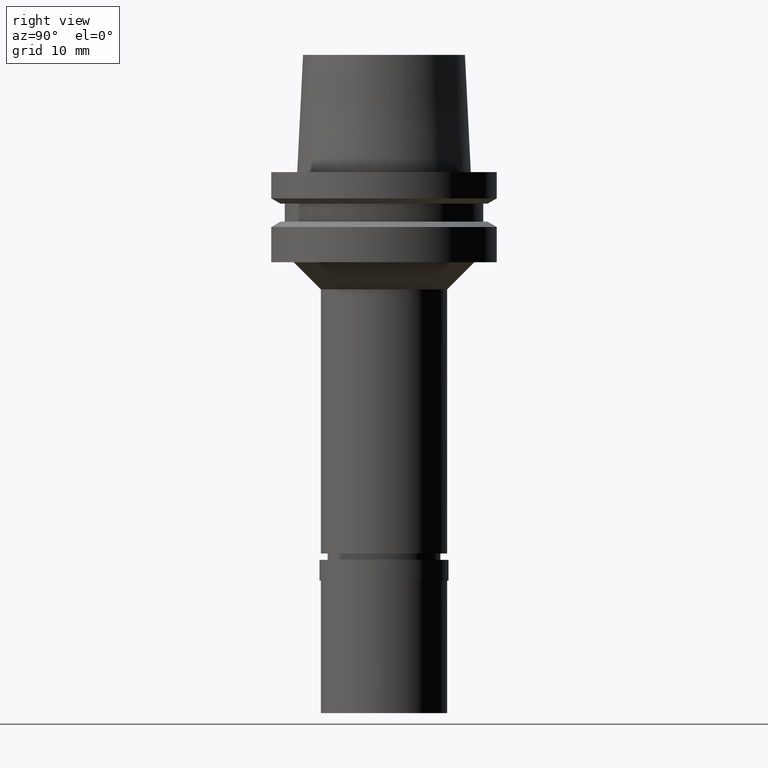
[diagram: clean part render]
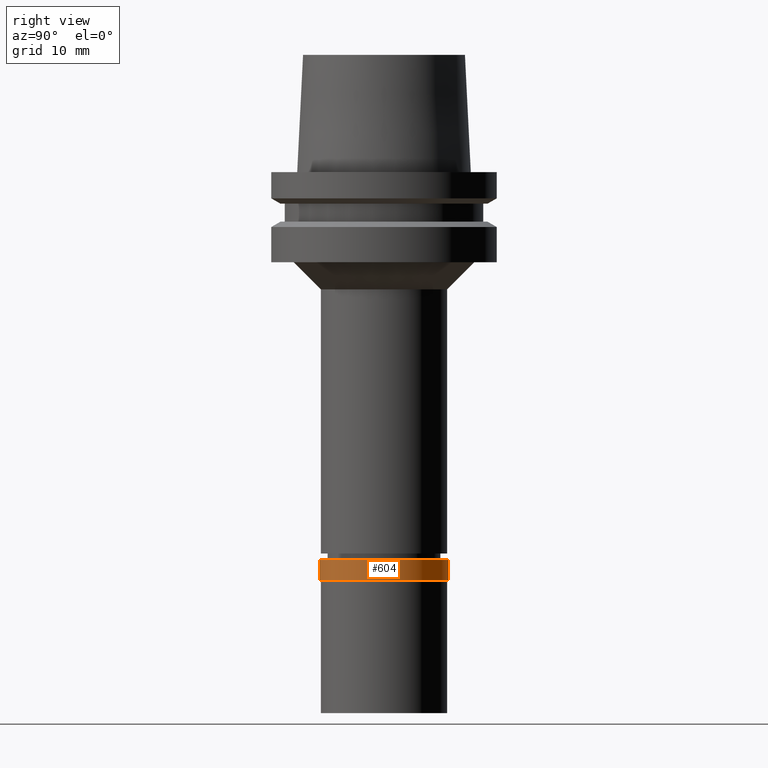
[diagram: same view with one face highlighted and labeled with its STEP entity id]
A machine part, right view. The second image highlights one B-rep face of the part: STEP entity #604.
In plain terms, the highlighted cylindrical surface (partial cylindrical patch) has radius 7.15 mm, axis along (0, 0, 1).
Its self-contained STEP definition (entity closure, byte-faithful):
#18 = DIRECTION ( 'NONE',  ( 0.0000000000000000000, -1.000000000000000000, 0.0000000000000000000 ) ) ;
#60 = VERTEX_POINT ( 'NONE', #2435 ) ;
#68 = VERTEX_POINT ( 'NONE', #1365 ) ;
#124 = DIRECTION ( 'NONE',  ( 0.0000000000000000000, 1.000000000000000000, 0.0000000000000000000 ) ) ;
#139 = CARTESIAN_POINT ( 'NONE',  ( 0.0000000000000000000, -7.150000000000000355, 0.0000000000000000000 ) ) ;
#156 = CARTESIAN_POINT ( 'NONE',  ( 0.0000000000000000000, 7.150000000000000355, 0.0000000000000000000 ) ) ;
#190 = CARTESIAN_POINT ( 'NONE',  ( 0.0000000000000000000, 0.0000000000000000000, -17.85000000000000142 ) ) ;
#460 = AXIS2_PLACEMENT_3D ( 'NONE', #1788, #2662, #124 ) ;
#547 = CIRCLE ( 'NONE', #767, 7.150000000000000355 ) ;
#604 = ADVANCED_FACE ( 'NONE', ( #1844 ), #1626, .T. ) ;
#767 = AXIS2_PLACEMENT_3D ( 'NONE', #2102, #1468, #18 ) ;
#790 = VERTEX_POINT ( 'NONE', #922 ) ;
#806 = AXIS2_PLACEMENT_3D ( 'NONE', #190, #1420, #810 ) ;
#810 = DIRECTION ( 'NONE',  ( 0.0000000000000000000, 1.000000000000000000, 0.0000000000000000000 ) ) ;
#851 = ORIENTED_EDGE ( 'NONE', *, *, #1070, .T. ) ;
#865 = VERTEX_POINT ( 'NONE', #2205 ) ;
#922 = CARTESIAN_POINT ( 'NONE',  ( 0.0000000000000000000, -7.150000000000000355, 1.776356839399999922E-14 ) ) ;
#983 = DIRECTION ( 'NONE',  ( 0.0000000000000000000, 0.0000000000000000000, -1.000000000000000000 ) ) ;
#1035 = EDGE_LOOP ( 'NONE', ( #1226, #2643, #851, #1082 ) ) ;
#1070 = EDGE_CURVE ( 'NONE', #865, #60, #547, .T. ) ;
#1082 = ORIENTED_EDGE ( 'NONE', *, *, #2520, .F. ) ;
#1226 = ORIENTED_EDGE ( 'NONE', *, *, #1439, .T. ) ;
#1283 = CIRCLE ( 'NONE', #460, 7.150000000000000355 ) ;
#1365 = CARTESIAN_POINT ( 'NONE',  ( 0.0000000000000000000, 7.150000000000000355, 1.776356839399999922E-14 ) ) ;
#1420 = DIRECTION ( 'NONE',  ( 0.0000000000000000000, 0.0000000000000000000, 1.000000000000000000 ) ) ;
#1439 = EDGE_CURVE ( 'NONE', #68, #790, #1283, .T. ) ;
#1468 = DIRECTION ( 'NONE',  ( 0.0000000000000000000, 0.0000000000000000000, 1.000000000000000000 ) ) ;
#1617 = LINE ( 'NONE', #139, #1933 ) ;
#1626 = CYLINDRICAL_SURFACE ( 'NONE', #806, 7.150000000000000355 ) ;
#1788 = CARTESIAN_POINT ( 'NONE',  ( 0.0000000000000000000, 0.0000000000000000000, 1.776356839399999922E-14 ) ) ;
#1844 = FACE_OUTER_BOUND ( 'NONE', #1035, .T. ) ;
#1933 = VECTOR ( 'NONE', #2246, 1000.000000000000000 ) ;
#2025 = LINE ( 'NONE', #156, #2099 ) ;
#2099 = VECTOR ( 'NONE', #983, 1000.000000000000000 ) ;
#2102 = CARTESIAN_POINT ( 'NONE',  ( 0.0000000000000000000, 0.0000000000000000000, -2.299999999999999822 ) ) ;
#2205 = CARTESIAN_POINT ( 'NONE',  ( 0.0000000000000000000, -7.150000000000000355, -2.299999999999999822 ) ) ;
#2246 = DIRECTION ( 'NONE',  ( 0.0000000000000000000, 0.0000000000000000000, -1.000000000000000000 ) ) ;
#2435 = CARTESIAN_POINT ( 'NONE',  ( 0.0000000000000000000, 7.150000000000000355, -2.299999999999999822 ) ) ;
#2446 = EDGE_CURVE ( 'NONE', #790, #865, #1617, .T. ) ;
#2520 = EDGE_CURVE ( 'NONE', #68, #60, #2025, .T. ) ;
#2643 = ORIENTED_EDGE ( 'NONE', *, *, #2446, .T. ) ;
#2662 = DIRECTION ( 'NONE',  ( 0.0000000000000000000, 0.0000000000000000000, -1.000000000000000000 ) ) ;